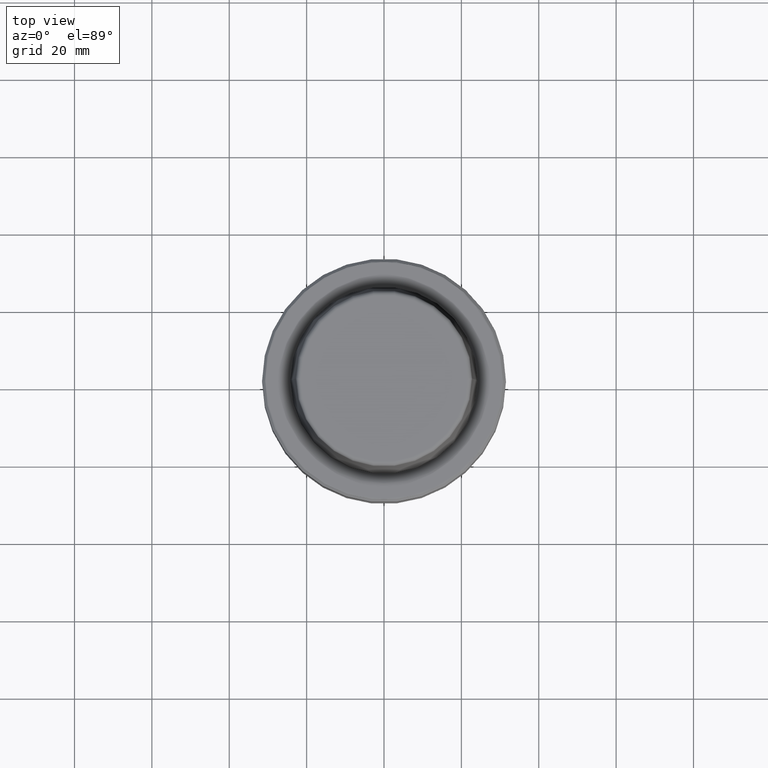
[diagram: clean part render]
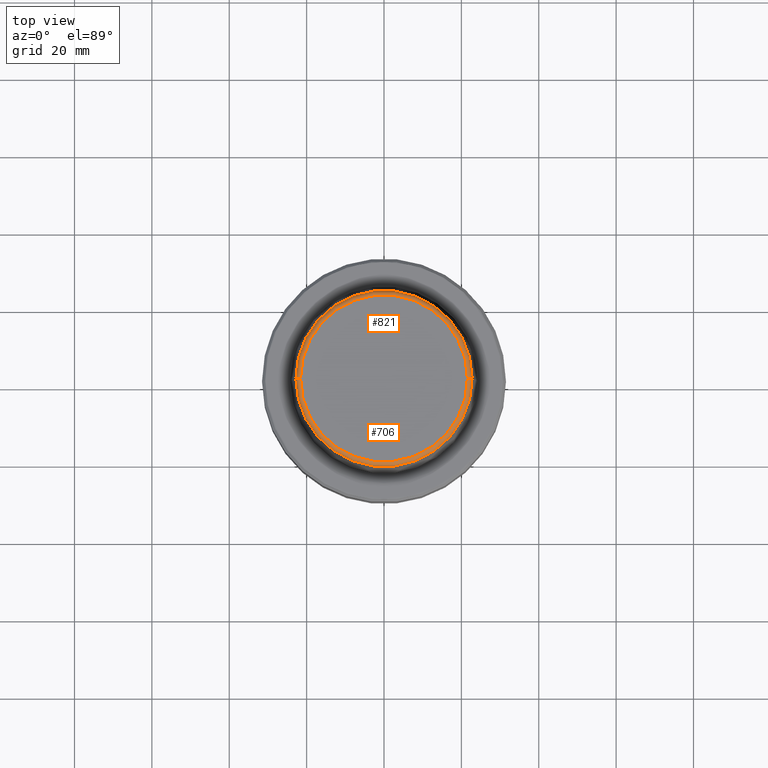
[diagram: same view with one multi-face feature highlighted, each face labeled with its STEP entity id]
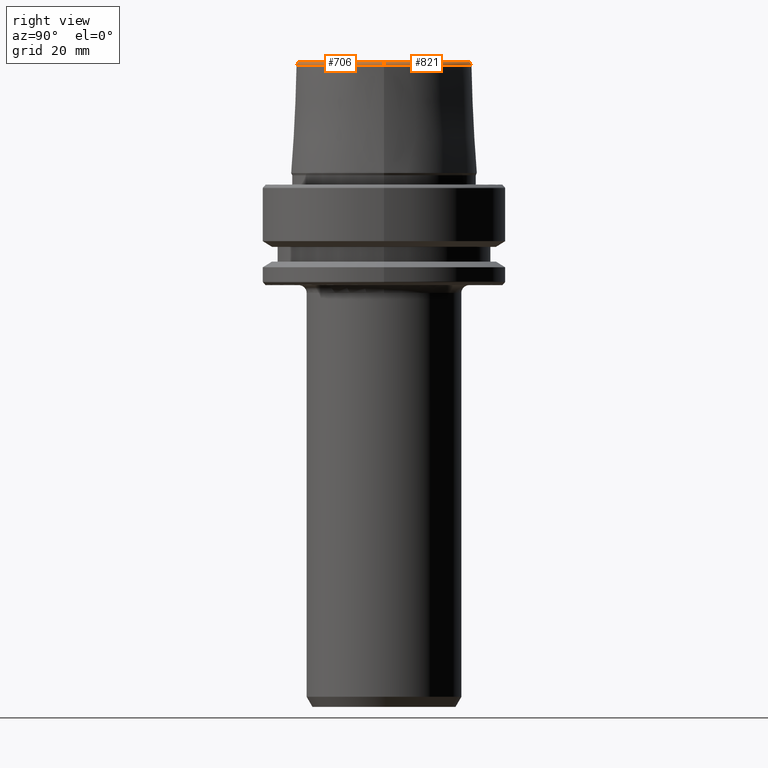
[diagram: same view with one multi-face feature highlighted, each face labeled with its STEP entity id]
A machine part, top view. The highlighted faces form ONE feature: a constant-radius fillet chain: 2 tangent blend faces with common blend radius 1.2 mm. The faces share edges in the B-rep.
A second angle (right view) of the same feature is appended — it is thin or edge-on in the first view.
Their STEP definitions:
[1] entity #706 (Torus):
#47 = AXIS2_PLACEMENT_3D ( 'NONE', #570, #649, #285 ) ;
#125 = CARTESIAN_POINT ( 'NONE',  ( 21.58108272732117100, 0.0000000000000000000, 31.89999999999999900 ) ) ;
#135 = DIRECTION ( 'NONE',  ( 0.0000000000000000000, 0.0000000000000000000, -1.000000000000000000 ) ) ;
#147 = DIRECTION ( 'NONE',  ( 1.000000000000000000, 0.0000000000000000000, 0.0000000000000000000 ) ) ;
#210 = CIRCLE ( 'NONE', #47, 22.77957961851797100 ) ;
#214 = CARTESIAN_POINT ( 'NONE',  ( 22.77957961851797100, 2.874852597157249900E-015, 30.76004333261571900 ) ) ;
#230 = DIRECTION ( 'NONE',  ( 0.0000000000000000000, -1.000000000000000000, 0.0000000000000000000 ) ) ;
#255 = AXIS2_PLACEMENT_3D ( 'NONE', #794, #713, #294 ) ;
#285 = DIRECTION ( 'NONE',  ( 1.000000000000000000, 0.0000000000000000000, 0.0000000000000000000 ) ) ;
#294 = DIRECTION ( 'NONE',  ( -1.000000000000000000, 1.224646799147353200E-016, 0.0000000000000000000 ) ) ;
#316 = AXIS2_PLACEMENT_3D ( 'NONE', #1180, #423, #637 ) ;
#336 = VERTEX_POINT ( 'NONE', #1008 ) ;
#423 = DIRECTION ( 'NONE',  ( -0.0000000000000000000, -0.0000000000000000000, 1.000000000000000000 ) ) ;
#425 = ORIENTED_EDGE ( 'NONE', *, *, #1048, .F. ) ;
#433 = EDGE_CURVE ( 'NONE', #1081, #981, #976, .T. ) ;
#454 = AXIS2_PLACEMENT_3D ( 'NONE', #972, #230, #135 ) ;
#481 = EDGE_LOOP ( 'NONE', ( #425, #526, #869, #764 ) ) ;
#526 = ORIENTED_EDGE ( 'NONE', *, *, #926, .T. ) ;
#570 = CARTESIAN_POINT ( 'NONE',  ( 0.0000000000000000000, 0.0000000000000000000, 30.76004333261571900 ) ) ;
#571 = CARTESIAN_POINT ( 'NONE',  ( -21.58108272732117100, 2.716307157494421400E-015, 31.89999999999999900 ) ) ;
#586 = CARTESIAN_POINT ( 'NONE',  ( 0.0000000000000000000, 0.0000000000000000000, 30.69999999999999200 ) ) ;
#637 = DIRECTION ( 'NONE',  ( 1.000000000000000000, 0.0000000000000000000, 0.0000000000000000000 ) ) ;
#649 = DIRECTION ( 'NONE',  ( -0.0000000000000000000, -0.0000000000000000000, 1.000000000000000000 ) ) ;
#675 = TOROIDAL_SURFACE ( 'NONE', #1062, 21.58108272732117100, 1.200000000000003100 ) ;
#706 = ADVANCED_FACE ( 'NONE', ( #1011 ), #675, .T. ) ;
#713 = DIRECTION ( 'NONE',  ( 1.224646799147353200E-016, 1.000000000000000000, 0.0000000000000000000 ) ) ;
#764 = ORIENTED_EDGE ( 'NONE', *, *, #987, .F. ) ;
#794 = CARTESIAN_POINT ( 'NONE',  ( -21.58108272732117100, 2.642920388414810300E-015, 30.69999999999999200 ) ) ;
#869 = ORIENTED_EDGE ( 'NONE', *, *, #433, .T. ) ;
#885 = CIRCLE ( 'NONE', #255, 1.200000000000003100 ) ;
#926 = EDGE_CURVE ( 'NONE', #336, #1081, #210, .T. ) ;
#928 = DIRECTION ( 'NONE',  ( -0.0000000000000000000, -0.0000000000000000000, 1.000000000000000000 ) ) ;
#972 = CARTESIAN_POINT ( 'NONE',  ( 21.58108272732117100, 0.0000000000000000000, 30.69999999999999200 ) ) ;
#976 = CIRCLE ( 'NONE', #454, 1.200000000000003100 ) ;
#981 = VERTEX_POINT ( 'NONE', #125 ) ;
#987 = EDGE_CURVE ( 'NONE', #1171, #981, #1202, .T. ) ;
#1008 = CARTESIAN_POINT ( 'NONE',  ( -22.77957961851797100, 0.0000000000000000000, 30.76004333261571900 ) ) ;
#1011 = FACE_OUTER_BOUND ( 'NONE', #481, .T. ) ;
#1048 = EDGE_CURVE ( 'NONE', #336, #1171, #885, .T. ) ;
#1062 = AXIS2_PLACEMENT_3D ( 'NONE', #586, #928, #147 ) ;
#1081 = VERTEX_POINT ( 'NONE', #214 ) ;
#1171 = VERTEX_POINT ( 'NONE', #571 ) ;
#1180 = CARTESIAN_POINT ( 'NONE',  ( 0.0000000000000000000, 0.0000000000000000000, 31.89999999999999900 ) ) ;
#1202 = CIRCLE ( 'NONE', #316, 21.58108272732117100 ) ;
[2] entity #821 (Torus):
#49 = DIRECTION ( 'NONE',  ( -0.0000000000000000000, -0.0000000000000000000, 1.000000000000000000 ) ) ;
#125 = CARTESIAN_POINT ( 'NONE',  ( 21.58108272732117100, 0.0000000000000000000, 31.89999999999999900 ) ) ;
#135 = DIRECTION ( 'NONE',  ( 0.0000000000000000000, 0.0000000000000000000, -1.000000000000000000 ) ) ;
#214 = CARTESIAN_POINT ( 'NONE',  ( 22.77957961851797100, 2.874852597157249900E-015, 30.76004333261571900 ) ) ;
#230 = DIRECTION ( 'NONE',  ( 0.0000000000000000000, -1.000000000000000000, 0.0000000000000000000 ) ) ;
#255 = AXIS2_PLACEMENT_3D ( 'NONE', #794, #713, #294 ) ;
#294 = DIRECTION ( 'NONE',  ( -1.000000000000000000, 1.224646799147353200E-016, 0.0000000000000000000 ) ) ;
#319 = EDGE_LOOP ( 'NONE', ( #382, #903, #738, #965 ) ) ;
#336 = VERTEX_POINT ( 'NONE', #1008 ) ;
#345 = AXIS2_PLACEMENT_3D ( 'NONE', #1009, #49, #655 ) ;
#382 = ORIENTED_EDGE ( 'NONE', *, *, #618, .T. ) ;
#389 = DIRECTION ( 'NONE',  ( 1.000000000000000000, 0.0000000000000000000, 0.0000000000000000000 ) ) ;
#402 = DIRECTION ( 'NONE',  ( -0.0000000000000000000, -0.0000000000000000000, 1.000000000000000000 ) ) ;
#429 = TOROIDAL_SURFACE ( 'NONE', #345, 21.58108272732117100, 1.200000000000003100 ) ;
#433 = EDGE_CURVE ( 'NONE', #1081, #981, #976, .T. ) ;
#454 = AXIS2_PLACEMENT_3D ( 'NONE', #972, #230, #135 ) ;
#566 = CARTESIAN_POINT ( 'NONE',  ( 0.0000000000000000000, 0.0000000000000000000, 30.76004333261571900 ) ) ;
#571 = CARTESIAN_POINT ( 'NONE',  ( -21.58108272732117100, 2.716307157494421400E-015, 31.89999999999999900 ) ) ;
#618 = EDGE_CURVE ( 'NONE', #1081, #336, #1095, .T. ) ;
#639 = CARTESIAN_POINT ( 'NONE',  ( 0.0000000000000000000, 0.0000000000000000000, 31.89999999999999900 ) ) ;
#655 = DIRECTION ( 'NONE',  ( 1.000000000000000000, 0.0000000000000000000, 0.0000000000000000000 ) ) ;
#692 = EDGE_CURVE ( 'NONE', #981, #1171, #822, .T. ) ;
#702 = DIRECTION ( 'NONE',  ( -0.0000000000000000000, -0.0000000000000000000, 1.000000000000000000 ) ) ;
#713 = DIRECTION ( 'NONE',  ( 1.224646799147353200E-016, 1.000000000000000000, 0.0000000000000000000 ) ) ;
#738 = ORIENTED_EDGE ( 'NONE', *, *, #692, .F. ) ;
#794 = CARTESIAN_POINT ( 'NONE',  ( -21.58108272732117100, 2.642920388414810300E-015, 30.69999999999999200 ) ) ;
#806 = AXIS2_PLACEMENT_3D ( 'NONE', #566, #702, #1014 ) ;
#821 = ADVANCED_FACE ( 'NONE', ( #1023 ), #429, .T. ) ;
#822 = CIRCLE ( 'NONE', #948, 21.58108272732117100 ) ;
#885 = CIRCLE ( 'NONE', #255, 1.200000000000003100 ) ;
#903 = ORIENTED_EDGE ( 'NONE', *, *, #1048, .T. ) ;
#948 = AXIS2_PLACEMENT_3D ( 'NONE', #639, #402, #389 ) ;
#965 = ORIENTED_EDGE ( 'NONE', *, *, #433, .F. ) ;
#972 = CARTESIAN_POINT ( 'NONE',  ( 21.58108272732117100, 0.0000000000000000000, 30.69999999999999200 ) ) ;
#976 = CIRCLE ( 'NONE', #454, 1.200000000000003100 ) ;
#981 = VERTEX_POINT ( 'NONE', #125 ) ;
#1008 = CARTESIAN_POINT ( 'NONE',  ( -22.77957961851797100, 0.0000000000000000000, 30.76004333261571900 ) ) ;
#1009 = CARTESIAN_POINT ( 'NONE',  ( 0.0000000000000000000, 0.0000000000000000000, 30.69999999999999200 ) ) ;
#1014 = DIRECTION ( 'NONE',  ( 1.000000000000000000, 0.0000000000000000000, 0.0000000000000000000 ) ) ;
#1023 = FACE_OUTER_BOUND ( 'NONE', #319, .T. ) ;
#1048 = EDGE_CURVE ( 'NONE', #336, #1171, #885, .T. ) ;
#1081 = VERTEX_POINT ( 'NONE', #214 ) ;
#1095 = CIRCLE ( 'NONE', #806, 22.77957961851797100 ) ;
#1171 = VERTEX_POINT ( 'NONE', #571 ) ;